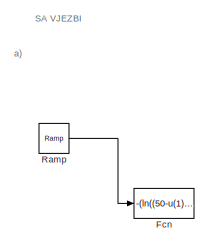
[diagram: root canvas - part 1/5, top left region]
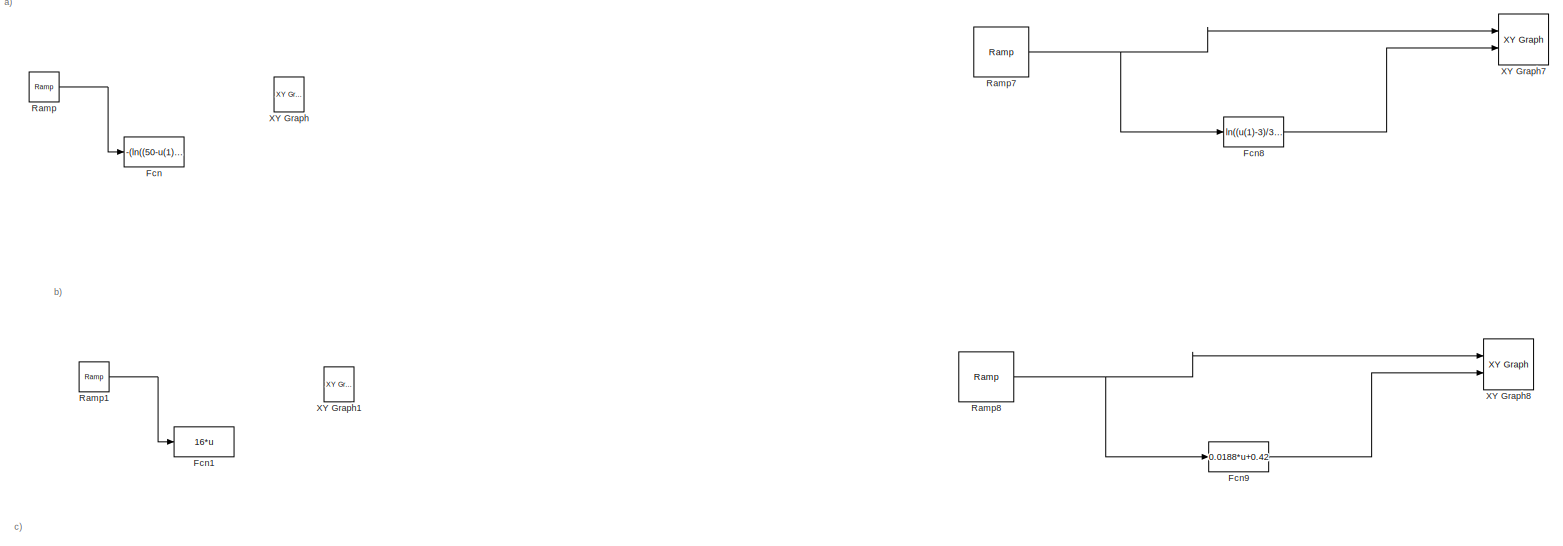
[diagram: root canvas - part 2/5, full width, top band]
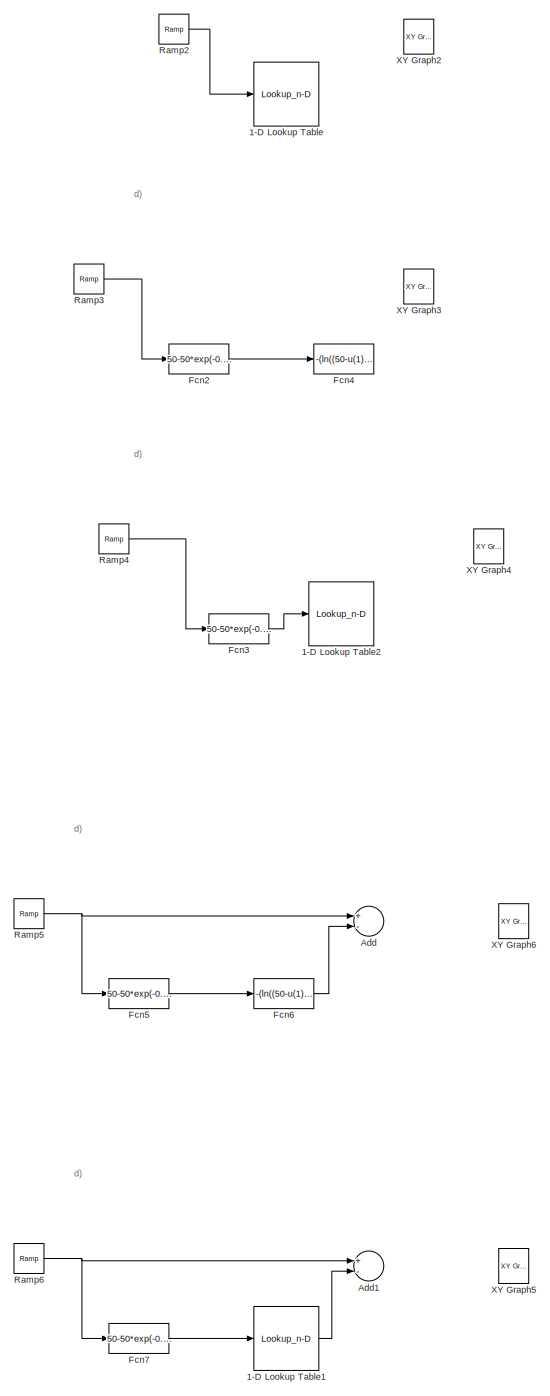
[diagram: root canvas - part 3/5, middle left region]
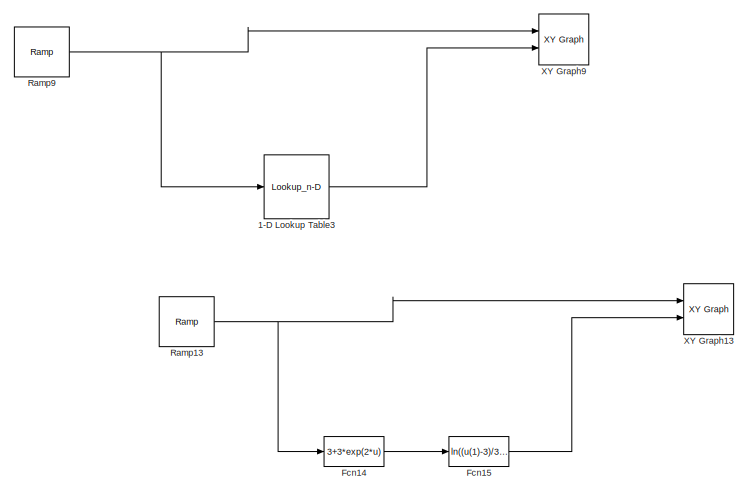
[diagram: root canvas - part 4/5, middle right region]
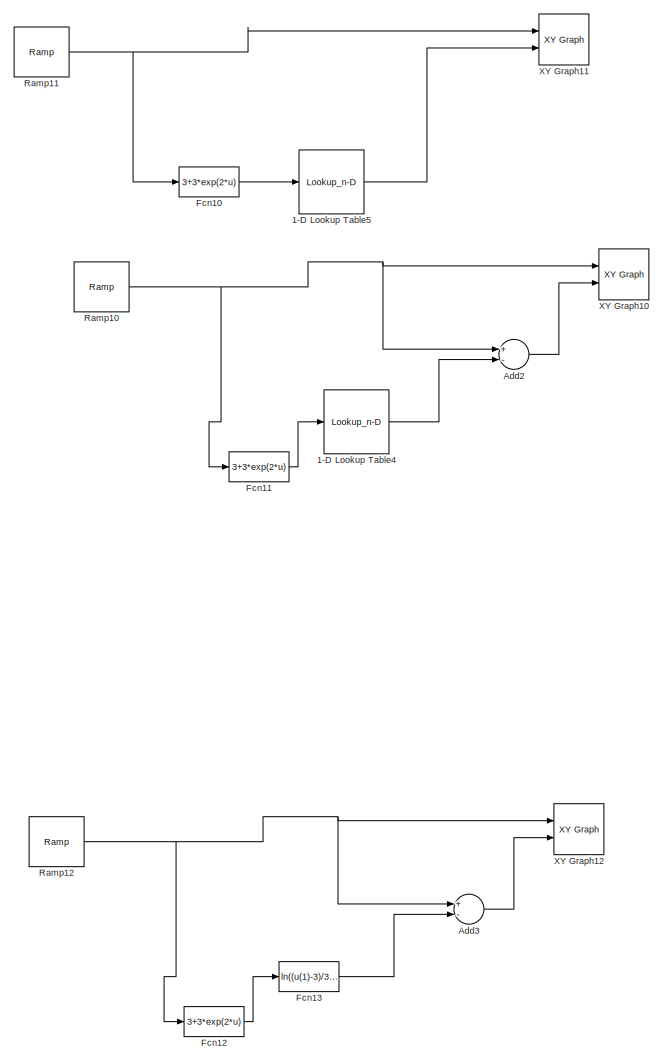
[diagram: root canvas - part 5/5, bottom right region]
MODEL slx_d301658b652e
KIND model
CONFIG AbsTol = auto
CONFIG EnableMultiTasking = off
CONFIG FixedStep = auto
CONFIG MaxStep = auto
CONFIG MinStep = auto
CONFIG RelTol = 1e-3
CONFIG SampleTimeConstraint = Unconstrained
CONFIG Solver = VariableStepAuto
CONFIG SolverName = VariableStepAuto
CONFIG StartTime = 0.0
CONFIG StopTime = 800
BLOCK [Lookup_n-D] 1-D Lookup Table
  BreakpointsForDimension1 = 50-50*exp(-0.005*[0:100:800])
  InternalRulePriority = Speed
  NumberOfTableDimensions = 1
  Ports = [1, 1]
  RndMeth = Simplest
  Table = [0:100:800]
BLOCK [Lookup_n-D] 1-D Lookup Table1
  BreakpointsForDimension1 = 50-50*exp(-0.005*[0:100:800])
  InternalRulePriority = Speed
  NumberOfTableDimensions = 1
  Ports = [1, 1]
  RndMeth = Simplest
  Table = [0:100:800]
BLOCK [Lookup_n-D] 1-D Lookup Table2
  BreakpointsForDimension1 = 50-50*exp(-0.005*[0:100:800])
  InternalRulePriority = Speed
  NumberOfTableDimensions = 1
  Ports = [1, 1]
  RndMeth = Simplest
  Table = [0:100:800]
BLOCK [Lookup_n-D] 1-D Lookup Table3
  BreakpointsForDimension1 = 3+3*exp(2*[0:5:50])
  InternalRulePriority = Speed
  NumberOfTableDimensions = 1
  Ports = [1, 1]
  RndMeth = Simplest
  Table = [0:5:50]
BLOCK [Lookup_n-D] 1-D Lookup Table4
  BreakpointsForDimension1 = 3+3*exp(2*[0:5:50])
  InternalRulePriority = Speed
  NumberOfTableDimensions = 1
  Ports = [1, 1]
  RndMeth = Simplest
  Table = [0:5:50]
BLOCK [Lookup_n-D] 1-D Lookup Table5
  BreakpointsForDimension1 = 3+3*exp(2*[0:5:50])
  InternalRulePriority = Speed
  NumberOfTableDimensions = 1
  Ports = [1, 1]
  RndMeth = Simplest
  Table = [0:5:50]
BLOCK [Sum] Add
  InputSameDT = off
  Inputs = +-
  OutDataTypeStr = Inherit: Inherit via internal rule
  Ports = [2, 1]
  SaturateOnIntegerOverflow = off
BLOCK [Sum] Add1
  InputSameDT = off
  Inputs = +-
  OutDataTypeStr = Inherit: Inherit via internal rule
  Ports = [2, 1]
  SaturateOnIntegerOverflow = off
BLOCK [Sum] Add2
  InputSameDT = off
  Inputs = +-
  OutDataTypeStr = Inherit: Inherit via internal rule
  Ports = [2, 1]
  SaturateOnIntegerOverflow = off
BLOCK [Sum] Add3
  InputSameDT = off
  Inputs = +-
  OutDataTypeStr = Inherit: Inherit via internal rule
  Ports = [2, 1]
  SaturateOnIntegerOverflow = off
BLOCK [Fcn] Fcn
  Expr = -(ln((50-u(1))/50))/0.005
BLOCK [Fcn] Fcn1
  Expr = 16*u
BLOCK [Fcn] Fcn10
  Expr = 3+3*exp(2*u)
BLOCK [Fcn] Fcn11
  Expr = 3+3*exp(2*u)
BLOCK [Fcn] Fcn12
  Expr = 3+3*exp(2*u)
BLOCK [Fcn] Fcn13
  Expr = ln((u(1)-3)/3)/2
BLOCK [Fcn] Fcn14
  Expr = 3+3*exp(2*u)
BLOCK [Fcn] Fcn15
  Expr = ln((u(1)-3)/3)/2
BLOCK [Fcn] Fcn2
  Expr = 50-50*exp(-0.005*u)
BLOCK [Fcn] Fcn3
  Expr = 50-50*exp(-0.005*u)
BLOCK [Fcn] Fcn4
  Expr = -(ln((50-u(1))/50))/0.005
BLOCK [Fcn] Fcn5
  Expr = 50-50*exp(-0.005*u)
BLOCK [Fcn] Fcn6
  Expr = -(ln((50-u(1))/50))/0.005
BLOCK [Fcn] Fcn7
  Expr = 50-50*exp(-0.005*u)
BLOCK [Fcn] Fcn8
  Expr = ln((u(1)-3)/3)/2
BLOCK [Fcn] Fcn9
  Expr = 0.0188*u+0.42
BLOCK [Reference] Ramp  REF=simulink/Sources/Ramp
  Ports = [0, 1]
  SourceBlock = simulink/Sources/Ramp
  SourceProductBaseCode = SL
  SourceProductName = Simulink
  SourceType = Ramp
BLOCK [Reference] Ramp1  REF=simulink/Sources/Ramp
  Ports = [0, 1]
  SourceBlock = simulink/Sources/Ramp
  SourceProductBaseCode = SL
  SourceProductName = Simulink
  SourceType = Ramp
BLOCK [Reference] Ramp10  REF=simulink/Sources/Ramp
  Ports = [0, 1]
  SourceBlock = simulink/Sources/Ramp
  SourceProductBaseCode = SL
  SourceProductName = Simulink
  SourceType = Ramp
BLOCK [Reference] Ramp11  REF=simulink/Sources/Ramp
  Ports = [0, 1]
  SourceBlock = simulink/Sources/Ramp
  SourceProductBaseCode = SL
  SourceProductName = Simulink
  SourceType = Ramp
BLOCK [Reference] Ramp12  REF=simulink/Sources/Ramp
  Ports = [0, 1]
  SourceBlock = simulink/Sources/Ramp
  SourceProductBaseCode = SL
  SourceProductName = Simulink
  SourceType = Ramp
BLOCK [Reference] Ramp13  REF=simulink/Sources/Ramp
  Ports = [0, 1]
  SourceBlock = simulink/Sources/Ramp
  SourceProductBaseCode = SL
  SourceProductName = Simulink
  SourceType = Ramp
BLOCK [Reference] Ramp2  REF=simulink/Sources/Ramp
  Ports = [0, 1]
  SourceBlock = simulink/Sources/Ramp
  SourceProductBaseCode = SL
  SourceProductName = Simulink
  SourceType = Ramp
BLOCK [Reference] Ramp3  REF=simulink/Sources/Ramp
  Ports = [0, 1]
  SourceBlock = simulink/Sources/Ramp
  SourceProductBaseCode = SL
  SourceProductName = Simulink
  SourceType = Ramp
BLOCK [Reference] Ramp4  REF=simulink/Sources/Ramp
  Ports = [0, 1]
  SourceBlock = simulink/Sources/Ramp
  SourceProductBaseCode = SL
  SourceProductName = Simulink
  SourceType = Ramp
BLOCK [Reference] Ramp5  REF=simulink/Sources/Ramp
  Ports = [0, 1]
  SourceBlock = simulink/Sources/Ramp
  SourceProductBaseCode = SL
  SourceProductName = Simulink
  SourceType = Ramp
BLOCK [Reference] Ramp6  REF=simulink/Sources/Ramp
  Ports = [0, 1]
  SourceBlock = simulink/Sources/Ramp
  SourceProductBaseCode = SL
  SourceProductName = Simulink
  SourceType = Ramp
BLOCK [Reference] Ramp7  REF=simulink/Sources/Ramp
  Ports = [0, 1]
  SourceBlock = simulink/Sources/Ramp
  SourceProductBaseCode = SL
  SourceProductName = Simulink
  SourceType = Ramp
BLOCK [Reference] Ramp8  REF=simulink/Sources/Ramp
  Ports = [0, 1]
  SourceBlock = simulink/Sources/Ramp
  SourceProductBaseCode = SL
  SourceProductName = Simulink
  SourceType = Ramp
BLOCK [Reference] Ramp9  REF=simulink/Sources/Ramp
  Ports = [0, 1]
  SourceBlock = simulink/Sources/Ramp
  SourceProductBaseCode = SL
  SourceProductName = Simulink
  SourceType = Ramp
BLOCK [Reference] XY Graph  REF=simulink/Sinks/XY Graph
  Ports = [2]
  SourceBlock = simulink/Sinks/XY Graph
  SourceProductBaseCode = SL
  SourceProductName = Simulink
  SourceType = XY scope.
BLOCK [Reference] XY Graph1  REF=simulink/Sinks/XY Graph
  Ports = [2]
  SourceBlock = simulink/Sinks/XY Graph
  SourceProductBaseCode = SL
  SourceProductName = Simulink
  SourceType = XY scope.
BLOCK [Reference] XY Graph10  REF=simulink/Sinks/XY Graph
  Ports = [2]
  SourceBlock = simulink/Sinks/XY Graph
  SourceProductBaseCode = SL
  SourceProductName = Simulink
  SourceType = XY scope.
BLOCK [Reference] XY Graph11  REF=simulink/Sinks/XY Graph
  Ports = [2]
  SourceBlock = simulink/Sinks/XY Graph
  SourceProductBaseCode = SL
  SourceProductName = Simulink
  SourceType = XY scope.
BLOCK [Reference] XY Graph12  REF=simulink/Sinks/XY Graph
  Ports = [2]
  SourceBlock = simulink/Sinks/XY Graph
  SourceProductBaseCode = SL
  SourceProductName = Simulink
  SourceType = XY scope.
BLOCK [Reference] XY Graph13  REF=simulink/Sinks/XY Graph
  Ports = [2]
  SourceBlock = simulink/Sinks/XY Graph
  SourceProductBaseCode = SL
  SourceProductName = Simulink
  SourceType = XY scope.
BLOCK [Reference] XY Graph2  REF=simulink/Sinks/XY Graph
  Ports = [2]
  SourceBlock = simulink/Sinks/XY Graph
  SourceProductBaseCode = SL
  SourceProductName = Simulink
  SourceType = XY scope.
BLOCK [Reference] XY Graph3  REF=simulink/Sinks/XY Graph
  Ports = [2]
  SourceBlock = simulink/Sinks/XY Graph
  SourceProductBaseCode = SL
  SourceProductName = Simulink
  SourceType = XY scope.
BLOCK [Reference] XY Graph4  REF=simulink/Sinks/XY Graph
  Ports = [2]
  SourceBlock = simulink/Sinks/XY Graph
  SourceProductBaseCode = SL
  SourceProductName = Simulink
  SourceType = XY scope.
BLOCK [Reference] XY Graph5  REF=simulink/Sinks/XY Graph
  Ports = [2]
  SourceBlock = simulink/Sinks/XY Graph
  SourceProductBaseCode = SL
  SourceProductName = Simulink
  SourceType = XY scope.
BLOCK [Reference] XY Graph6  REF=simulink/Sinks/XY Graph
  Ports = [2]
  SourceBlock = simulink/Sinks/XY Graph
  SourceProductBaseCode = SL
  SourceProductName = Simulink
  SourceType = XY scope.
BLOCK [Reference] XY Graph7  REF=simulink/Sinks/XY Graph
  Ports = [2]
  SourceBlock = simulink/Sinks/XY Graph
  SourceProductBaseCode = SL
  SourceProductName = Simulink
  SourceType = XY scope.
BLOCK [Reference] XY Graph8  REF=simulink/Sinks/XY Graph
  Ports = [2]
  SourceBlock = simulink/Sinks/XY Graph
  SourceProductBaseCode = SL
  SourceProductName = Simulink
  SourceType = XY scope.
BLOCK [Reference] XY Graph9  REF=simulink/Sinks/XY Graph
  Ports = [2]
  SourceBlock = simulink/Sinks/XY Graph
  SourceProductBaseCode = SL
  SourceProductName = Simulink
  SourceType = XY scope.
ANNOTATION (root): SA VJEZBI
ANNOTATION (root): a)
ANNOTATION (root): b)
ANNOTATION (root): c)
ANNOTATION (root): d)
LINE 1-D Lookup Table1:1 -> Add1:2
LINE 1-D Lookup Table3:1 -> XY Graph9:2
LINE 1-D Lookup Table4:1 -> Add2:2
LINE 1-D Lookup Table5:1 -> XY Graph11:2
LINE Add2:1 -> XY Graph10:2
LINE Add3:1 -> XY Graph12:2
LINE Fcn10:1 -> 1-D Lookup Table5:1
LINE Fcn11:1 -> 1-D Lookup Table4:1
LINE Fcn12:1 -> Fcn13:1
LINE Fcn13:1 -> Add3:2
LINE Fcn14:1 -> Fcn15:1
LINE Fcn15:1 -> XY Graph13:2
LINE Fcn2:1 -> Fcn4:1
LINE Fcn3:1 -> 1-D Lookup Table2:1
LINE Fcn5:1 -> Fcn6:1
LINE Fcn6:1 -> Add:2
LINE Fcn7:1 -> 1-D Lookup Table1:1
LINE Fcn8:1 -> XY Graph7:2
LINE Fcn9:1 -> XY Graph8:2
NET Ramp10:1 -> Add2:1, Fcn11:1, XY Graph10:1
NET Ramp11:1 -> Fcn10:1, XY Graph11:1
NET Ramp12:1 -> Add3:1, Fcn12:1, XY Graph12:1
NET Ramp13:1 -> Fcn14:1, XY Graph13:1
LINE Ramp1:1 -> Fcn1:1
LINE Ramp2:1 -> 1-D Lookup Table:1
LINE Ramp3:1 -> Fcn2:1
LINE Ramp4:1 -> Fcn3:1
NET Ramp5:1 -> Add:1, Fcn5:1
NET Ramp6:1 -> Add1:1, Fcn7:1
NET Ramp7:1 -> Fcn8:1, XY Graph7:1
NET Ramp8:1 -> Fcn9:1, XY Graph8:1
NET Ramp9:1 -> 1-D Lookup Table3:1, XY Graph9:1
LINE Ramp:1 -> Fcn:1
note: NET lines group one-source signal fan-out (src -> all destinations, sorted); 1:1 wires keep LINE
